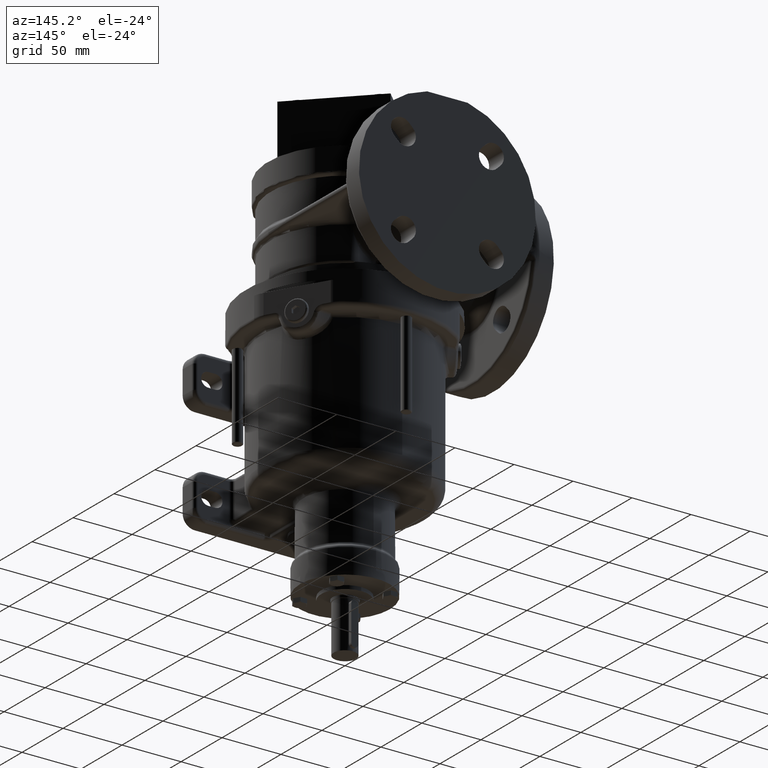
[diagram: clean part render]
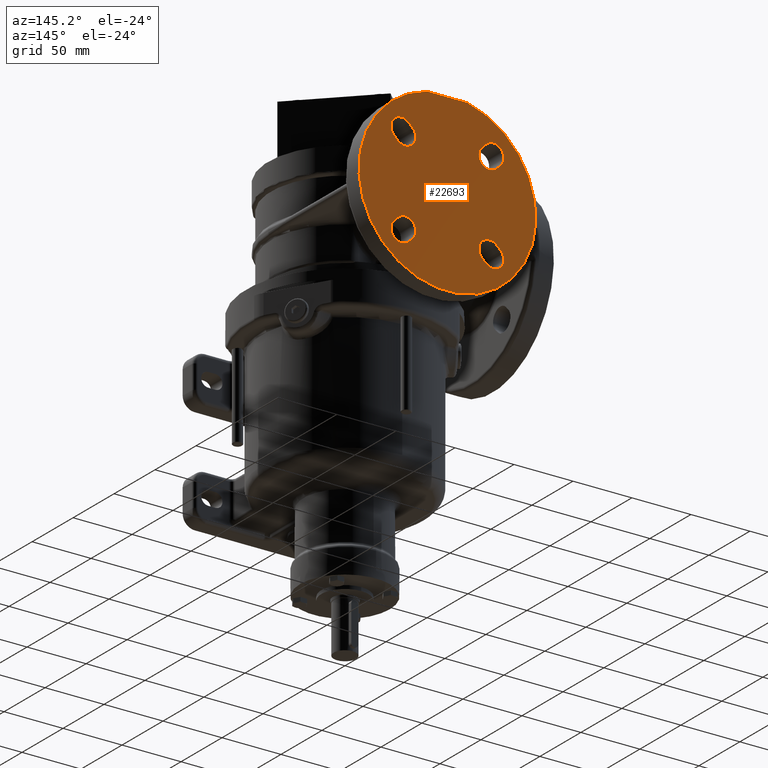
[diagram: same view with one face highlighted and labeled with its STEP entity id]
A machine part, auxiliary view. The second image highlights one B-rep face of the part: STEP entity #22693.
In plain terms, the highlighted planar face has unit normal (0, -1, 0).
Its self-contained STEP definition (entity closure, byte-faithful):
#2556=CARTESIAN_POINT('',(0.E0,1.25E2,8.5E1));
#2557=DIRECTION('',(0.E0,1.E0,0.E0));
#2558=DIRECTION('',(2.293953404545E-1,0.E0,9.733333333333E-1));
#2559=AXIS2_PLACEMENT_3D('',#2556,#2557,#2558);
#2667=DIRECTION('',(-1.E0,0.E0,0.E0));
#2668=VECTOR('',#2667,3.440930106817E1);
#2669=CARTESIAN_POINT('',(1.720465053409E1,1.25E2,1.58E2));
#2670=LINE('',#2669,#2668);
#2671=DIRECTION('',(-7.071067811865E-1,0.E0,-7.071067811865E-1));
#2672=VECTOR('',#2671,4.5E0);
#2673=CARTESIAN_POINT('',(-2.934493141924E1,1.25E2,4.292714651940E1));
#2674=LINE('',#2673,#2672);
#2675=CARTESIAN_POINT('',(-3.889087296526E1,1.25E2,4.610912703474E1));
#2676=DIRECTION('',(0.E0,1.E0,0.E0));
#2677=DIRECTION('',(7.071067811866E-1,0.E0,-7.071067811865E-1));
#2678=AXIS2_PLACEMENT_3D('',#2675,#2676,#2677);
#2680=DIRECTION('',(7.071067811865E-1,0.E0,7.071067811865E-1));
#2681=VECTOR('',#2680,4.5E0);
#2682=CARTESIAN_POINT('',(-4.525483399594E1,1.25E2,5.247308806542E1));
#2683=LINE('',#2682,#2681);
#2684=CARTESIAN_POINT('',(-3.570889244992E1,1.25E2,4.929110755008E1));
#2685=DIRECTION('',(0.E0,1.E0,0.E0));
#2686=DIRECTION('',(-7.071067811865E-1,0.E0,7.071067811865E-1));
#2687=AXIS2_PLACEMENT_3D('',#2684,#2685,#2686);
#2689=DIRECTION('',(7.071067811865E-1,0.E0,-7.071067811865E-1));
#2690=VECTOR('',#2689,4.5E0);
#2691=CARTESIAN_POINT('',(4.207285348060E1,1.25E2,5.565506858076E1));
#2692=LINE('',#2691,#2690);
#2693=CARTESIAN_POINT('',(3.889087296526E1,1.25E2,4.610912703474E1));
#2694=DIRECTION('',(0.E0,1.E0,0.E0));
#2695=DIRECTION('',(7.071067811865E-1,0.E0,7.071067811866E-1));
#2696=AXIS2_PLACEMENT_3D('',#2693,#2694,#2695);
#2698=DIRECTION('',(-7.071067811865E-1,0.E0,7.071067811865E-1));
#2699=VECTOR('',#2698,4.5E0);
#2700=CARTESIAN_POINT('',(3.252691193458E1,1.25E2,3.974516600406E1));
#2701=LINE('',#2700,#2699);
#2702=CARTESIAN_POINT('',(3.570889244992E1,1.25E2,4.929110755008E1));
#2703=DIRECTION('',(0.E0,1.E0,0.E0));
#2704=DIRECTION('',(-7.071067811865E-1,0.E0,-7.071067811865E-1));
#2705=AXIS2_PLACEMENT_3D('',#2702,#2703,#2704);
#2707=DIRECTION('',(7.071067811865E-1,0.E0,7.071067811865E-1));
#2708=VECTOR('',#2707,4.5E0);
#2709=CARTESIAN_POINT('',(2.934493141924E1,1.25E2,1.270728534806E2));
#2710=LINE('',#2709,#2708);
#2711=CARTESIAN_POINT('',(3.889087296526E1,1.25E2,1.238908729653E2));
#2712=DIRECTION('',(0.E0,1.E0,0.E0));
#2713=DIRECTION('',(-7.071067811866E-1,0.E0,7.071067811865E-1));
#2714=AXIS2_PLACEMENT_3D('',#2711,#2712,#2713);
#2716=DIRECTION('',(-7.071067811865E-1,0.E0,-7.071067811865E-1));
#2717=VECTOR('',#2716,4.5E0);
#2718=CARTESIAN_POINT('',(4.525483399594E1,1.25E2,1.175269119346E2));
#2719=LINE('',#2718,#2717);
#2720=CARTESIAN_POINT('',(3.570889244992E1,1.25E2,1.207088924499E2));
#2721=DIRECTION('',(0.E0,1.E0,0.E0));
#2722=DIRECTION('',(7.071067811866E-1,0.E0,-7.071067811865E-1));
#2723=AXIS2_PLACEMENT_3D('',#2720,#2721,#2722);
#2725=DIRECTION('',(-7.071067811865E-1,0.E0,7.071067811866E-1));
#2726=VECTOR('',#2725,4.5E0);
#2727=CARTESIAN_POINT('',(-4.207285348060E1,1.25E2,1.143449314192E2));
#2728=LINE('',#2727,#2726);
#2729=CARTESIAN_POINT('',(-3.889087296526E1,1.25E2,1.238908729653E2));
#2730=DIRECTION('',(0.E0,1.E0,0.E0));
#2731=DIRECTION('',(-7.071067811865E-1,0.E0,-7.071067811866E-1));
#2732=AXIS2_PLACEMENT_3D('',#2729,#2730,#2731);
#2734=DIRECTION('',(7.071067811865E-1,0.E0,-7.071067811865E-1));
#2735=VECTOR('',#2734,4.5E0);
#2736=CARTESIAN_POINT('',(-3.252691193458E1,1.25E2,1.302548339959E2));
#2737=LINE('',#2736,#2735);
#2738=CARTESIAN_POINT('',(-3.570889244992E1,1.25E2,1.207088924499E2));
#2739=DIRECTION('',(0.E0,1.E0,0.E0));
#2740=DIRECTION('',(7.071067811865E-1,0.E0,7.071067811866E-1));
#2741=AXIS2_PLACEMENT_3D('',#2738,#2739,#2740);
#17025=CARTESIAN_POINT('',(1.720465053409E1,1.25E2,1.58E2));
#17026=CARTESIAN_POINT('',(-1.720465053409E1,1.25E2,1.58E2));
#17027=VERTEX_POINT('',#17025);
#17028=VERTEX_POINT('',#17026);
#17093=CARTESIAN_POINT('',(-2.934493141924E1,1.25E2,4.292714651940E1));
#17095=VERTEX_POINT('',#17093);
#17097=CARTESIAN_POINT('',(-3.252691193458E1,1.25E2,3.974516600406E1));
#17099=VERTEX_POINT('',#17097);
#17101=CARTESIAN_POINT('',(-4.525483399594E1,1.25E2,5.247308806542E1));
#17103=VERTEX_POINT('',#17101);
#17105=CARTESIAN_POINT('',(-4.207285348060E1,1.25E2,5.565506858076E1));
#17107=VERTEX_POINT('',#17105);
#17109=CARTESIAN_POINT('',(4.207285348060E1,1.25E2,5.565506858076E1));
#17111=VERTEX_POINT('',#17109);
#17113=CARTESIAN_POINT('',(4.525483399594E1,1.25E2,5.247308806542E1));
#17115=VERTEX_POINT('',#17113);
#17117=CARTESIAN_POINT('',(3.252691193458E1,1.25E2,3.974516600406E1));
#17119=VERTEX_POINT('',#17117);
#17121=CARTESIAN_POINT('',(2.934493141924E1,1.25E2,4.292714651940E1));
#17123=VERTEX_POINT('',#17121);
#17125=CARTESIAN_POINT('',(2.934493141924E1,1.25E2,1.270728534806E2));
#17127=VERTEX_POINT('',#17125);
#17129=CARTESIAN_POINT('',(3.252691193458E1,1.25E2,1.302548339959E2));
#17131=VERTEX_POINT('',#17129);
#17133=CARTESIAN_POINT('',(4.525483399594E1,1.25E2,1.175269119346E2));
#17135=VERTEX_POINT('',#17133);
#17137=CARTESIAN_POINT('',(4.207285348060E1,1.25E2,1.143449314192E2));
#17139=VERTEX_POINT('',#17137);
#17141=CARTESIAN_POINT('',(-4.207285348060E1,1.25E2,1.143449314192E2));
#17143=VERTEX_POINT('',#17141);
#17145=CARTESIAN_POINT('',(-4.525483399594E1,1.25E2,1.175269119346E2));
#17147=VERTEX_POINT('',#17145);
#17149=CARTESIAN_POINT('',(-3.252691193458E1,1.25E2,1.302548339959E2));
#17151=VERTEX_POINT('',#17149);
#17153=CARTESIAN_POINT('',(-2.934493141924E1,1.25E2,1.270728534806E2));
#17155=VERTEX_POINT('',#17153);
#22643=CARTESIAN_POINT('',(1.25E2,1.25E2,1.85E2));
#22644=DIRECTION('',(0.E0,-1.E0,0.E0));
#22645=DIRECTION('',(-1.E0,0.E0,0.E0));
#22646=AXIS2_PLACEMENT_3D('',#22643,#22644,#22645);
#22647=PLANE('',#22646);
#22649=ORIENTED_EDGE('',*,*,#22648,.T.);
#22650=ORIENTED_EDGE('',*,*,#22621,.F.);
#22651=EDGE_LOOP('',(#22649,#22650));
#22652=FACE_OUTER_BOUND('',#22651,.F.);
#22654=ORIENTED_EDGE('',*,*,#22653,.T.);
#22656=ORIENTED_EDGE('',*,*,#22655,.T.);
#22658=ORIENTED_EDGE('',*,*,#22657,.T.);
#22660=ORIENTED_EDGE('',*,*,#22659,.T.);
#22661=EDGE_LOOP('',(#22654,#22656,#22658,#22660));
#22662=FACE_BOUND('',#22661,.F.);
#22664=ORIENTED_EDGE('',*,*,#22663,.T.);
#22666=ORIENTED_EDGE('',*,*,#22665,.T.);
#22668=ORIENTED_EDGE('',*,*,#22667,.T.);
#22670=ORIENTED_EDGE('',*,*,#22669,.T.);
#22671=EDGE_LOOP('',(#22664,#22666,#22668,#22670));
#22672=FACE_BOUND('',#22671,.F.);
#22674=ORIENTED_EDGE('',*,*,#22673,.T.);
#22676=ORIENTED_EDGE('',*,*,#22675,.T.);
#22678=ORIENTED_EDGE('',*,*,#22677,.T.);
#22680=ORIENTED_EDGE('',*,*,#22679,.T.);
#22681=EDGE_LOOP('',(#22674,#22676,#22678,#22680));
#22682=FACE_BOUND('',#22681,.F.);
#22684=ORIENTED_EDGE('',*,*,#22683,.T.);
#22686=ORIENTED_EDGE('',*,*,#22685,.T.);
#22688=ORIENTED_EDGE('',*,*,#22687,.T.);
#22690=ORIENTED_EDGE('',*,*,#22689,.T.);
#22691=EDGE_LOOP('',(#22684,#22686,#22688,#22690));
#22692=FACE_BOUND('',#22691,.F.);
#22693=ADVANCED_FACE('',(#22652,#22662,#22672,#22682,#22692),#22647,.F.);
#2560=CIRCLE('',#2559,7.5E1);
#2679=CIRCLE('',#2678,9.E0);
#2688=CIRCLE('',#2687,9.E0);
#2697=CIRCLE('',#2696,9.E0);
#2706=CIRCLE('',#2705,9.E0);
#2715=CIRCLE('',#2714,9.E0);
#2724=CIRCLE('',#2723,9.E0);
#2733=CIRCLE('',#2732,9.E0);
#2742=CIRCLE('',#2741,9.E0);
#22621=EDGE_CURVE('',#17027,#17028,#2560,.T.);
#22648=EDGE_CURVE('',#17027,#17028,#2670,.T.);
#22653=EDGE_CURVE('',#17095,#17099,#2674,.T.);
#22655=EDGE_CURVE('',#17099,#17103,#2679,.T.);
#22657=EDGE_CURVE('',#17103,#17107,#2683,.T.);
#22659=EDGE_CURVE('',#17107,#17095,#2688,.T.);
#22663=EDGE_CURVE('',#17111,#17115,#2692,.T.);
#22665=EDGE_CURVE('',#17115,#17119,#2697,.T.);
#22667=EDGE_CURVE('',#17119,#17123,#2701,.T.);
#22669=EDGE_CURVE('',#17123,#17111,#2706,.T.);
#22673=EDGE_CURVE('',#17127,#17131,#2710,.T.);
#22675=EDGE_CURVE('',#17131,#17135,#2715,.T.);
#22677=EDGE_CURVE('',#17135,#17139,#2719,.T.);
#22679=EDGE_CURVE('',#17139,#17127,#2724,.T.);
#22683=EDGE_CURVE('',#17143,#17147,#2728,.T.);
#22685=EDGE_CURVE('',#17147,#17151,#2733,.T.);
#22687=EDGE_CURVE('',#17151,#17155,#2737,.T.);
#22689=EDGE_CURVE('',#17155,#17143,#2742,.T.);